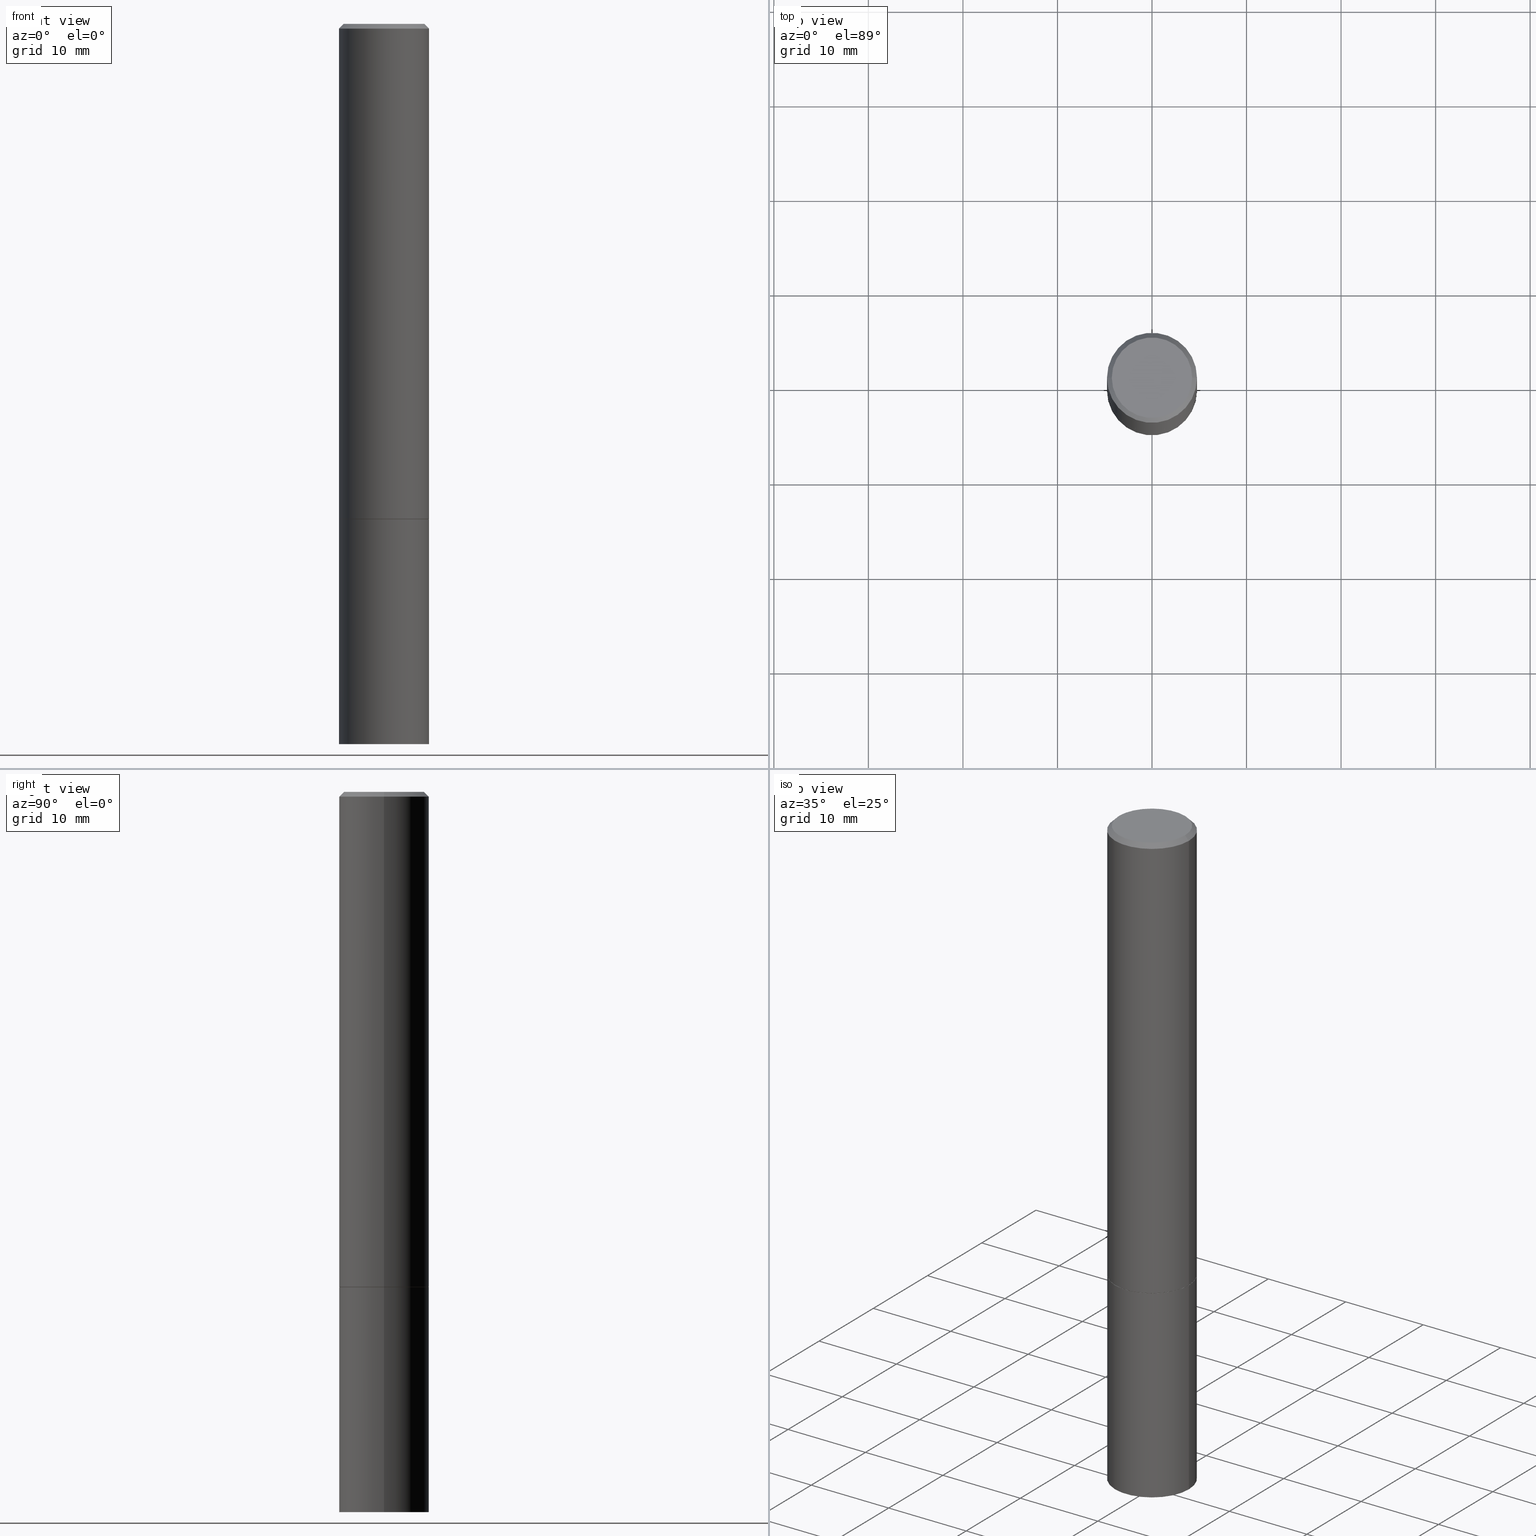
[diagram: canonical four-view strip — front | top / right | iso, engineering-drawing reading convention]
A machine part, canonical four-view strip (front | top / right | iso — engineering-drawing reading convention). The complete STEP part file that produces these views, byte-faithful:
ISO-10303-21;
HEADER;
FILE_DESCRIPTION (( 'STEP AP203' ),
    '1' );
FILE_NAME ('77139.STEP',
    '2024-02-29T14:53:44',
    ( '' ),
    ( '' ),
    'SwSTEP 2.0',
    'SolidWorks 2023',
    '' );
FILE_SCHEMA (( 'CONFIG_CONTROL_DESIGN' ));
ENDSEC;

DATA;
#1 = CARTESIAN_POINT ( 'NONE',  ( 5.043779412756843670E-29, -7.201180261363987000E-15, -2.062500000000000000 ) ) ;
#2 = CIRCLE ( 'NONE', #186, 0.1875000000000000278 ) ;
#3 = FACE_OUTER_BOUND ( 'NONE', #17, .T. ) ;
#4 = CARTESIAN_POINT ( 'NONE',  ( 5.041333943950659188E-29, -7.197688780025145571E-15, -2.061500000000000110 ) ) ;
#5 = APPROVAL ( #313, 'UNSPECIFIED' ) ;
#6 = DATE_AND_TIME ( #103, #20 ) ;
#7 = EDGE_LOOP ( 'NONE', ( #114, #272, #299, #92 ) ) ;
#8 = AXIS2_PLACEMENT_3D ( 'NONE', #145, #24, #151 ) ;
#9 = ORGANIZATION ( 'UNSPECIFIED', 'UNSPECIFIED', '' ) ;
#10 = SHAPE_DEFINITION_REPRESENTATION ( #173, #52 ) ;
#11 = EDGE_CURVE ( 'NONE', #350, #281, #195, .T. ) ;
#12 = DIRECTION ( 'NONE',  ( 1.000000000000000000, -6.982962677686265922E-15, 4.875936752492899929E-29 ) ) ;
#13 = DATE_AND_TIME ( #42, #95 ) ;
#14 = DIRECTION ( 'NONE',  ( -2.445468806185136597E-29, 3.491481338843145583E-15, 1.000000000000000000 ) ) ;
#15 = AXIS2_PLACEMENT_3D ( 'NONE', #1, #200, #171 ) ;
#16 = LINE ( 'NONE', #77, #25 ) ;
#17 = EDGE_LOOP ( 'NONE', ( #333, #327, #61, #82 ) ) ;
#18 = AXIS2_PLACEMENT_3D ( 'NONE', #160, #349, #325 ) ;
#19 = ORIENTED_EDGE ( 'NONE', *, *, #70, .F. ) ;
#20 = LOCAL_TIME ( 9, 53, 44.00000000000000000, #348 ) ;
#21 = CC_DESIGN_PERSON_AND_ORGANIZATION_ASSIGNMENT ( #237, #287, ( #326 ) ) ;
#22 = VERTEX_POINT ( 'NONE', #358 ) ;
#23 = EDGE_LOOP ( 'NONE', ( #277, #90, #19, #75 ) ) ;
#24 = DIRECTION ( 'NONE',  ( 2.438088387897960049E-29, -3.491481338843145188E-15, -1.000000000000000000 ) ) ;
#25 = VECTOR ( 'NONE', #347, 39.37007874015748143 ) ;
#26 = CARTESIAN_POINT ( 'NONE',  ( -1.043851414335219820E-46, 1.490343170380447200E-32, 4.268512490100411279E-18 ) ) ;
#27 = DIRECTION ( 'NONE',  ( 1.000000000000000000, -6.982962677686265922E-15, 4.875936752492899929E-29 ) ) ;
#28 = MANIFOLD_SOLID_BREP ( 'Body-Move/Copy2[1]', #301 ) ;
#29 = CARTESIAN_POINT ( 'NONE',  ( -0.1864999999999999991, -5.870719604823178546E-15, -2.062500000000000000 ) ) ;
#30 = APPLICATION_CONTEXT ( 'configuration controlled 3d designs of mechanical parts and assemblies' ) ;
#31 = VERTEX_POINT ( 'NONE', #328 ) ;
#32 = DIRECTION ( 'NONE',  ( -2.445468806185136597E-29, 3.491481338843145583E-15, 1.000000000000000000 ) ) ;
#33 = EDGE_CURVE ( 'NONE', #80, #331, #56, .T. ) ;
#34 = DATE_TIME_ROLE ( 'classification_date' ) ;
#35 = DATE_AND_TIME ( #184, #197 ) ;
#36 = CARTESIAN_POINT ( 'NONE',  ( 5.041333943950659188E-29, -7.197688780025145571E-15, -2.061500000000000110 ) ) ;
#37 = CONICAL_SURFACE ( 'NONE', #78, 0.1864999999999999991, 0.7853981633975507526 ) ;
#38 = VECTOR ( 'NONE', #106, 39.37007874015748143 ) ;
#39 = DATE_AND_TIME ( #189, #64 ) ;
#40 = FACE_OUTER_BOUND ( 'NONE', #221, .T. ) ;
#41 = ORIENTED_EDGE ( 'NONE', *, *, #33, .T. ) ;
#42 = CALENDAR_DATE ( 2024, 29, 2 ) ;
#43 = DIRECTION ( 'NONE',  ( -1.000000000000000000, 6.982962677686265922E-15, -4.876176775795935793E-29 ) ) ;
#44 = EDGE_LOOP ( 'NONE', ( #248, #137 ) ) ;
#45 = ADVANCED_FACE ( 'NONE', ( #251 ), #360, .T. ) ;
#46 = CIRCLE ( 'NONE', #113, 0.1875000000000000278 ) ;
#47 = CC_DESIGN_SECURITY_CLASSIFICATION ( #178, ( #326 ) ) ;
#48 = EDGE_CURVE ( 'NONE', #331, #80, #46, .T. ) ;
#49 = ORIENTED_EDGE ( 'NONE', *, *, #48, .T. ) ;
#50 = CC_DESIGN_PERSON_AND_ORGANIZATION_ASSIGNMENT ( #65, #157, ( #326 ) ) ;
#51 = DIRECTION ( 'NONE',  ( -2.445468806185136597E-29, 3.491481338843145583E-15, 1.000000000000000000 ) ) ;
#52 = ADVANCED_BREP_SHAPE_REPRESENTATION ( '77139', ( #28, #275, #162 ), #332 ) ;
#53 = DIRECTION ( 'NONE',  ( 1.000000000000000000, -6.982962677686265922E-15, 4.876176775795935793E-29 ) ) ;
#54 = VERTEX_POINT ( 'NONE', #311 ) ;
#55 = CARTESIAN_POINT ( 'NONE',  ( -0.1875000000000000278, -7.505544509396524617E-15, -3.000000000000000444 ) ) ;
#56 = CIRCLE ( 'NONE', #72, 0.1875000000000000278 ) ;
#57 = PRODUCT_DEFINITION ( 'UNKNOWN', '', #326, #100 ) ;
#58 = DIRECTION ( 'NONE',  ( 1.000000000000000000, -6.982962677686265133E-15, 0.000000000000000000 ) ) ;
#59 = ADVANCED_FACE ( 'NONE', ( #204 ), #37, .T. ) ;
#60 = CARTESIAN_POINT ( 'NONE',  ( 0.1875000000000000278, -1.309305502066175008E-15, 9.142831454617381013E-30 ) ) ;
#61 = ORIENTED_EDGE ( 'NONE', *, *, #302, .T. ) ;
#62 = DIRECTION ( 'NONE',  ( 1.000000000000000000, -6.982962677686268288E-15, 0.000000000000000000 ) ) ;
#63 = AXIS2_PLACEMENT_3D ( 'NONE', #309, #202, #174 ) ;
#64 = LOCAL_TIME ( 9, 53, 44.00000000000000000, #318 ) ;
#65 = PERSON_AND_ORGANIZATION ( #268, #9 ) ;
#66 = DIRECTION ( 'NONE',  ( -2.445468806185136597E-29, 3.491481338843145583E-15, 1.000000000000000000 ) ) ;
#67 = VERTEX_POINT ( 'NONE', #208 ) ;
#68 = PERSON_AND_ORGANIZATION_ROLE ( 'design_owner' ) ;
#69 = CARTESIAN_POINT ( 'NONE',  ( -0.1874999999999997502, 1.239475875289309935E-15, -0.02000000000000004205 ) ) ;
#70 = EDGE_CURVE ( 'NONE', #22, #350, #144, .T. ) ;
#71 = DIRECTION ( 'NONE',  ( -2.445468806185136597E-29, 3.491481338843145583E-15, 1.000000000000000000 ) ) ;
#72 = AXIS2_PLACEMENT_3D ( 'NONE', #143, #51, #166 ) ;
#73 = PERSON_AND_ORGANIZATION ( #268, #9 ) ;
#74 = DIRECTION ( 'NONE',  ( 2.438088387897960049E-29, -3.491481338843145188E-15, -1.000000000000000000 ) ) ;
#75 = ORIENTED_EDGE ( 'NONE', *, *, #169, .F. ) ;
#76 = DIRECTION ( 'NONE',  ( -1.000000000000000000, 6.982962677686265133E-15, 0.000000000000000000 ) ) ;
#77 = CARTESIAN_POINT ( 'NONE',  ( -0.1875000000000000278, 1.332267629550188046E-15, -9.223003294227947991E-30 ) ) ;
#78 = AXIS2_PLACEMENT_3D ( 'NONE', #226, #335, #62 ) ;
#79 = ORIENTED_EDGE ( 'NONE', *, *, #319, .T. ) ;
#80 = VERTEX_POINT ( 'NONE', #284 ) ;
#81 = AXIS2_PLACEMENT_3D ( 'NONE', #146, #122, #180 ) ;
#82 = ORIENTED_EDGE ( 'NONE', *, *, #183, .F. ) ;
#83 = ADVANCED_FACE ( 'NONE', ( #231 ), #366, .T. ) ;
#84 = ORIENTED_EDGE ( 'NONE', *, *, #131, .F. ) ;
#85 = APPROVAL ( #285, 'UNSPECIFIED' ) ;
#86 = CARTESIAN_POINT ( 'NONE',  ( 0.1874999999999997502, -1.356173001359023494E-15, -0.02000000000000004205 ) ) ;
#87 = DIRECTION ( 'NONE',  ( -2.445468806185136597E-29, 3.491481338843145583E-15, 1.000000000000000000 ) ) ;
#88 = AXIS2_PLACEMENT_3D ( 'NONE', #278, #308, #58 ) ;
#89 = DIRECTION ( 'NONE',  ( 0.7071067811865465735, -7.319954787623252890E-15, -0.7071067811865484609 ) ) ;
#90 = ORIENTED_EDGE ( 'NONE', *, *, #359, .T. ) ;
#91 = DIRECTION ( 'NONE',  ( 2.438088387897960049E-29, -3.491481338843145188E-15, -1.000000000000000000 ) ) ;
#92 = ORIENTED_EDGE ( 'NONE', *, *, #259, .F. ) ;
#93 = APPROVAL_ROLE ( '' ) ;
#94 = CARTESIAN_POINT ( 'NONE',  ( 0.000000000000000000, 0.000000000000000000, 0.000000000000000000 ) ) ;
#95 = LOCAL_TIME ( 9, 53, 44.00000000000000000, #206 ) ;
#96 = DIRECTION ( 'NONE',  ( 1.000000000000000000, -6.982962677686266711E-15, 0.000000000000000000 ) ) ;
#97 = CALENDAR_DATE ( 2024, 29, 2 ) ;
#98 = PERSON_AND_ORGANIZATION ( #268, #9 ) ;
#99 = DIRECTION ( 'NONE',  ( 1.000000000000000000, -6.982962677686268288E-15, 0.000000000000000000 ) ) ;
#100 = DESIGN_CONTEXT ( 'detailed design', #228, 'design' ) ;
#101 = EDGE_LOOP ( 'NONE', ( #84, #217, #199, #111 ) ) ;
#102 = CIRCLE ( 'NONE', #342, 0.1674999999999997602 ) ;
#103 = CALENDAR_DATE ( 2024, 29, 2 ) ;
#104 = DIRECTION ( 'NONE',  ( 1.000000000000000000, -6.982962677686268288E-15, 0.000000000000000000 ) ) ;
#105 = ADVANCED_FACE ( 'NONE', ( #261 ), #280, .T. ) ;
#106 = DIRECTION ( 'NONE',  ( -0.7071067811866199593, 7.493145998870616062E-15, 0.7071067811864750752 ) ) ;
#107 = EDGE_CURVE ( 'NONE', #159, #54, #353, .T. ) ;
#108 = AXIS2_PLACEMENT_3D ( 'NONE', #26, #337, #27 ) ;
#109 = VERTEX_POINT ( 'NONE', #29 ) ;
#110 = EDGE_LOOP ( 'NONE', ( #41, #49 ) ) ;
#111 = ORIENTED_EDGE ( 'NONE', *, *, #183, .T. ) ;
#112 = ADVANCED_FACE ( 'NONE', ( #3 ), #176, .T. ) ;
#113 = AXIS2_PLACEMENT_3D ( 'NONE', #167, #276, #253 ) ;
#114 = ORIENTED_EDGE ( 'NONE', *, *, #359, .F. ) ;
#115 = CC_DESIGN_PERSON_AND_ORGANIZATION_ASSIGNMENT ( #235, #344, ( #57 ) ) ;
#116 = DIRECTION ( 'NONE',  ( 0.7071067811866199593, -2.468850131083015945E-15, 0.7071067811864750752 ) ) ;
#117 = LINE ( 'NONE', #60, #352 ) ;
#118 = EDGE_CURVE ( 'NONE', #139, #281, #249, .T. ) ;
#119 = CARTESIAN_POINT ( 'NONE',  ( 0.000000000000000000, 0.000000000000000000, 0.000000000000000000 ) ) ;
#120 = CARTESIAN_POINT ( 'NONE',  ( -1.043851414335219820E-46, 1.490343170380447200E-32, 4.268512490100411279E-18 ) ) ;
#121 = AXIS2_PLACEMENT_3D ( 'NONE', #288, #134, #345 ) ;
#122 = DIRECTION ( 'NONE',  ( -2.445468806185136597E-29, 3.491481338843145583E-15, 1.000000000000000000 ) ) ;
#123 = ORIENTED_EDGE ( 'NONE', *, *, #11, .T. ) ;
#124 = LINE ( 'NONE', #149, #170 ) ;
#125 = EDGE_CURVE ( 'NONE', #31, #67, #165, .T. ) ;
#126 = DIRECTION ( 'NONE',  ( 0.000000000000000000, 0.000000000000000000, 1.000000000000000000 ) ) ;
#127 = CONICAL_SURFACE ( 'NONE', #121, 0.1874999999999997502, 0.7853981633974469467 ) ;
#128 = APPROVAL_STATUS ( 'not_yet_approved' ) ;
#129 = CARTESIAN_POINT ( 'NONE',  ( 0.1874999999999998890, -1.309305502066174022E-15, 9.142831454617374006E-30 ) ) ;
#130 = DIRECTION ( 'NONE',  ( -2.445468806185136597E-29, 3.491481338843145583E-15, 1.000000000000000000 ) ) ;
#131 = EDGE_CURVE ( 'NONE', #67, #139, #124, .T. ) ;
#132 = ORIENTED_EDGE ( 'NONE', *, *, #33, .F. ) ;
#133 = COORDINATED_UNIVERSAL_TIME_OFFSET ( 5, 0, .BEHIND. ) ;
#134 = DIRECTION ( 'NONE',  ( 2.445468806185136597E-29, -3.491481338843145583E-15, -1.000000000000000000 ) ) ;
#135 = AXIS2_PLACEMENT_3D ( 'NONE', #279, #32, #306 ) ;
#136 =( CONVERSION_BASED_UNIT ( 'INCH', #252 ) LENGTH_UNIT ( ) NAMED_UNIT ( #329 ) );
#137 = ORIENTED_EDGE ( 'NONE', *, *, #192, .T. ) ;
#138 = VECTOR ( 'NONE', #218, 39.37007874015748143 ) ;
#139 = VERTEX_POINT ( 'NONE', #86 ) ;
#140 =( NAMED_UNIT ( * ) PLANE_ANGLE_UNIT ( ) SI_UNIT ( $, .RADIAN. ) );
#141 = ORIENTED_EDGE ( 'NONE', *, *, #147, .F. ) ;
#142 = ADVANCED_FACE ( 'NONE', ( #201 ), #338, .F. ) ;
#143 = CARTESIAN_POINT ( 'NONE',  ( 5.043779412756844791E-29, -7.201180261363988578E-15, -2.062500000000000000 ) ) ;
#144 = CIRCLE ( 'NONE', #260, 0.1875000000000000278 ) ;
#145 = CARTESIAN_POINT ( 'NONE',  ( 1.309305502066248372E-15, 0.1874999999999895361, -3.000000000000000888 ) ) ;
#146 = CARTESIAN_POINT ( 'NONE',  ( 7.336406418555409790E-29, -1.047444401652943635E-14, -3.000000000000000444 ) ) ;
#147 = EDGE_CURVE ( 'NONE', #54, #80, #117, .T. ) ;
#148 = LINE ( 'NONE', #227, #175 ) ;
#149 = CARTESIAN_POINT ( 'NONE',  ( 0.1874999999999997502, -1.356173001359023494E-15, -0.02000000000000004205 ) ) ;
#150 = AXIS2_PLACEMENT_3D ( 'NONE', #316, #154, #266 ) ;
#151 = DIRECTION ( 'NONE',  ( -1.000000000000000000, 6.982962677686265922E-15, -4.876176775795935793E-29 ) ) ;
#152 = ADVANCED_FACE ( 'NONE', ( #341 ), #256, .T. ) ;
#153 = PERSON_AND_ORGANIZATION ( #268, #9 ) ;
#154 = DIRECTION ( 'NONE',  ( -2.445468806185136597E-29, 3.491481338843145583E-15, 1.000000000000000000 ) ) ;
#155 = CONICAL_SURFACE ( 'NONE', #336, 0.1874999999999997502, 0.7853981633974469467 ) ;
#156 = EDGE_LOOP ( 'NONE', ( #362, #191 ) ) ;
#157 = PERSON_AND_ORGANIZATION_ROLE ( 'design_supplier' ) ;
#158 = CARTESIAN_POINT ( 'NONE',  ( -0.1875000000000000278, -2.301491573850814614E-15, -2.061500000000000110 ) ) ;
#159 = VERTEX_POINT ( 'NONE', #55 ) ;
#160 = CARTESIAN_POINT ( 'NONE',  ( 5.043779412756844791E-29, -7.201180261363988578E-15, -2.062500000000000000 ) ) ;
#161 = CLOSED_SHELL ( 'NONE', ( #177, #152, #245, #203, #112, #59, #270, #142 ) ) ;
#162 = AXIS2_PLACEMENT_3D ( 'NONE', #119, #126, #320 ) ;
#163 = CC_DESIGN_PERSON_AND_ORGANIZATION_ASSIGNMENT ( #73, #68, ( #364 ) ) ;
#164 = ORIENTED_EDGE ( 'NONE', *, *, #70, .T. ) ;
#165 = CIRCLE ( 'NONE', #108, 0.1674999999999997602 ) ;
#166 = DIRECTION ( 'NONE',  ( 1.000000000000000000, -6.982962677686266711E-15, 0.000000000000000000 ) ) ;
#167 = CARTESIAN_POINT ( 'NONE',  ( 5.043779412756844791E-29, -7.201180261363988578E-15, -2.062500000000000000 ) ) ;
#168 = ORIENTED_EDGE ( 'NONE', *, *, #317, .F. ) ;
#169 = EDGE_CURVE ( 'NONE', #274, #22, #148, .T. ) ;
#170 = VECTOR ( 'NONE', #89, 39.37007874015748143 ) ;
#171 = DIRECTION ( 'NONE',  ( 1.000000000000000000, -6.982962677686268288E-15, 0.000000000000000000 ) ) ;
#172 = DIRECTION ( 'NONE',  ( 1.000000000000000000, -6.982962677686265922E-15, 4.876176775795935793E-29 ) ) ;
#173 = PRODUCT_DEFINITION_SHAPE ( 'NONE', 'NONE',  #57 ) ;
#174 = DIRECTION ( 'NONE',  ( 1.000000000000000000, -6.982962677686265922E-15, 4.876176775795935793E-29 ) ) ;
#175 = VECTOR ( 'NONE', #116, 39.37007874015748143 ) ;
#176 = CYLINDRICAL_SURFACE ( 'NONE', #265, 0.1874999999999998890 ) ;
#177 = ADVANCED_FACE ( 'NONE', ( #258 ), #216, .T. ) ;
#178 = SECURITY_CLASSIFICATION ( '', '', #179 ) ;
#179 = SECURITY_CLASSIFICATION_LEVEL ( 'unclassified' ) ;
#180 = DIRECTION ( 'NONE',  ( 1.000000000000000000, -6.982962677686261189E-15, 0.000000000000000000 ) ) ;
#181 = DATE_AND_TIME ( #97, #230 ) ;
#182 = DIRECTION ( 'NONE',  ( -2.445468806185136877E-29, 3.491481338843145188E-15, 1.000000000000000000 ) ) ;
#183 = EDGE_CURVE ( 'NONE', #281, #139, #269, .T. ) ;
#184 = CALENDAR_DATE ( 2024, 29, 2 ) ;
#185 = CARTESIAN_POINT ( 'NONE',  ( -0.1874999999999997502, 1.239475875289309935E-15, -0.02000000000000004205 ) ) ;
#186 = AXIS2_PLACEMENT_3D ( 'NONE', #36, #130, #96 ) ;
#187 = APPROVAL_PERSON_ORGANIZATION ( #210, #5, #93 ) ;
#188 = APPROVAL ( #128, 'UNSPECIFIED' ) ;
#189 = CALENDAR_DATE ( 2024, 29, 2 ) ;
#190 = DIRECTION ( 'NONE',  ( 2.445468806185136597E-29, -3.491481338843145583E-15, -1.000000000000000000 ) ) ;
#191 = ORIENTED_EDGE ( 'NONE', *, *, #107, .F. ) ;
#192 = EDGE_CURVE ( 'NONE', #67, #31, #102, .T. ) ;
#193 = AXIS2_PLACEMENT_3D ( 'NONE', #267, #244, #104 ) ;
#194 = ORIENTED_EDGE ( 'NONE', *, *, #131, .T. ) ;
#195 = LINE ( 'NONE', #250, #363 ) ;
#196 = CC_DESIGN_PERSON_AND_ORGANIZATION_ASSIGNMENT ( #351, #213, ( #178 ) ) ;
#197 = LOCAL_TIME ( 9, 53, 44.00000000000000000, #243 ) ;
#198 = CARTESIAN_POINT ( 'NONE',  ( 0.000000000000000000, 0.000000000000000000, 0.000000000000000000 ) ) ;
#199 = ORIENTED_EDGE ( 'NONE', *, *, #232, .T. ) ;
#200 = DIRECTION ( 'NONE',  ( -2.445468806185136597E-29, 3.491481338843145583E-15, 1.000000000000000000 ) ) ;
#201 = FACE_OUTER_BOUND ( 'NONE', #44, .T. ) ;
#202 = DIRECTION ( 'NONE',  ( -2.445468806185136597E-29, 3.491481338843145583E-15, 1.000000000000000000 ) ) ;
#203 = ADVANCED_FACE ( 'NONE', ( #236 ), #127, .T. ) ;
#204 = FACE_OUTER_BOUND ( 'NONE', #7, .T. ) ;
#205 = ORIENTED_EDGE ( 'NONE', *, *, #355, .F. ) ;
#206 = COORDINATED_UNIVERSAL_TIME_OFFSET ( 5, 0, .BEHIND. ) ;
#207 = CC_DESIGN_DATE_AND_TIME_ASSIGNMENT ( #13, #315, ( #57 ) ) ;
#208 = CARTESIAN_POINT ( 'NONE',  ( 0.1674999999999997602, -1.252653207992876711E-15, 4.268512490108880748E-18 ) ) ;
#209 = UNCERTAINTY_MEASURE_WITH_UNIT (LENGTH_MEASURE( 1.000000000000000082E-05 ), #136, 'distance_accuracy_value', 'NONE');
#210 = PERSON_AND_ORGANIZATION ( #268, #9 ) ;
#211 = LINE ( 'NONE', #185, #138 ) ;
#212 = EDGE_LOOP ( 'NONE', ( #164, #123, #239, #292 ) ) ;
#213 = PERSON_AND_ORGANIZATION_ROLE ( 'classification_officer' ) ;
#214 = APPROVAL_DATE_TIME ( #181, #85 ) ;
#215 = CARTESIAN_POINT ( 'NONE',  ( -0.1875000000000000278, -7.505544509396524617E-15, -2.062500000000000000 ) ) ;
#216 = CONICAL_SURFACE ( 'NONE', #15, 0.1864999999999999991, 0.7853981633975507526 ) ;
#217 = ORIENTED_EDGE ( 'NONE', *, *, #125, .F. ) ;
#218 = DIRECTION ( 'NONE',  ( -0.7071067811865465735, 2.468850131082246805E-15, -0.7071067811865484609 ) ) ;
#219 = AXIS2_PLACEMENT_3D ( 'NONE', #94, #87, #314 ) ;
#220 = EDGE_LOOP ( 'NONE', ( #242, #194, #295, #225 ) ) ;
#221 = EDGE_LOOP ( 'NONE', ( #205, #168 ) ) ;
#222 =( LENGTH_UNIT ( ) NAMED_UNIT ( * ) SI_UNIT ( $, .METRE. ) );
#223 = ORIENTED_EDGE ( 'NONE', *, *, #147, .T. ) ;
#224 = CIRCLE ( 'NONE', #193, 0.1864999999999999991 ) ;
#225 = ORIENTED_EDGE ( 'NONE', *, *, #232, .F. ) ;
#226 = CARTESIAN_POINT ( 'NONE',  ( 5.043779412756843670E-29, -7.201180261363987000E-15, -2.062500000000000000 ) ) ;
#227 = CARTESIAN_POINT ( 'NONE',  ( 0.1864999999999999991, -8.503502800752475994E-15, -2.062500000000000000 ) ) ;
#228 = APPLICATION_CONTEXT ( 'configuration controlled 3d designs of mechanical parts and assemblies' ) ;
#229 = VECTOR ( 'NONE', #182, 39.37007874015748143 ) ;
#230 = LOCAL_TIME ( 9, 53, 44.00000000000000000, #133 ) ;
#231 = FACE_OUTER_BOUND ( 'NONE', #156, .T. ) ;
#232 = EDGE_CURVE ( 'NONE', #31, #281, #211, .T. ) ;
#233 = DIRECTION ( 'NONE',  ( -2.445468806185136597E-29, 3.491481338843145583E-15, 1.000000000000000000 ) ) ;
#234 = CARTESIAN_POINT ( 'NONE',  ( 1.169646248512447820E-15, 0.1674999999999997602, -5.826888680111757675E-16 ) ) ;
#235 = PERSON_AND_ORGANIZATION ( #268, #9 ) ;
#236 = FACE_OUTER_BOUND ( 'NONE', #101, .T. ) ;
#237 = PERSON_AND_ORGANIZATION ( #268, #9 ) ;
#238 = CARTESIAN_POINT ( 'NONE',  ( 5.043779412756843670E-29, -7.201180261363987000E-15, -2.062500000000000000 ) ) ;
#239 = ORIENTED_EDGE ( 'NONE', *, *, #118, .F. ) ;
#240 = MECHANICAL_CONTEXT ( 'NONE', #30, 'mechanical' ) ;
#241 = PLANE ( 'NONE',  #18 ) ;
#242 = ORIENTED_EDGE ( 'NONE', *, *, #192, .F. ) ;
#243 = COORDINATED_UNIVERSAL_TIME_OFFSET ( 5, 0, .BEHIND. ) ;
#244 = DIRECTION ( 'NONE',  ( -2.445468806185136597E-29, 3.491481338843145583E-15, 1.000000000000000000 ) ) ;
#245 = ADVANCED_FACE ( 'NONE', ( #324 ), #155, .T. ) ;
#246 = PRODUCT_RELATED_PRODUCT_CATEGORY ( 'detail', '', ( #364 ) ) ;
#247 = CARTESIAN_POINT ( 'NONE',  ( -0.1864999999999999991, -5.876018059171400948E-15, -2.062500000000000000 ) ) ;
#248 = ORIENTED_EDGE ( 'NONE', *, *, #125, .T. ) ;
#249 = CIRCLE ( 'NONE', #135, 0.1874999999999997502 ) ;
#250 = CARTESIAN_POINT ( 'NONE',  ( -0.1874999999999998890, 1.332267629550187060E-15, -9.223003294227942385E-30 ) ) ;
#251 = FACE_OUTER_BOUND ( 'NONE', #356, .T. ) ;
#252 = LENGTH_MEASURE_WITH_UNIT ( LENGTH_MEASURE( 0.02539999999999999897 ), #222 );
#253 = DIRECTION ( 'NONE',  ( 1.000000000000000000, -6.982962677686266711E-15, 0.000000000000000000 ) ) ;
#254 = AXIS2_PLACEMENT_3D ( 'NONE', #234, #91, #262 ) ;
#255 = AXIS2_PLACEMENT_3D ( 'NONE', #294, #74, #43 ) ;
#256 = CYLINDRICAL_SURFACE ( 'NONE', #219, 0.1874999999999998890 ) ;
#257 = CARTESIAN_POINT ( 'NONE',  ( 0.000000000000000000, 0.000000000000000000, 0.000000000000000000 ) ) ;
#258 = FACE_OUTER_BOUND ( 'NONE', #23, .T. ) ;
#259 = EDGE_CURVE ( 'NONE', #350, #22, #2, .T. ) ;
#260 = AXIS2_PLACEMENT_3D ( 'NONE', #4, #66, #365 ) ;
#261 = FACE_OUTER_BOUND ( 'NONE', #289, .T. ) ;
#262 = DIRECTION ( 'NONE',  ( -1.000000000000000000, 6.982962677686265922E-15, -4.876176775795935793E-29 ) ) ;
#263 = APPROVAL_ROLE ( '' ) ;
#264 = APPROVAL_DATE_TIME ( #35, #188 ) ;
#265 = AXIS2_PLACEMENT_3D ( 'NONE', #257, #233, #172 ) ;
#266 = DIRECTION ( 'NONE',  ( 1.000000000000000000, -6.982962677686261189E-15, 0.000000000000000000 ) ) ;
#267 = CARTESIAN_POINT ( 'NONE',  ( 5.043779412756843670E-29, -7.201180261363987000E-15, -2.062500000000000000 ) ) ;
#268 = PERSON ( 'UNSPECIFIED', 'UNSPECIFIED', 'UNSPECIFIED', ('UNSPECIFIED'), ('UNSPECIFIED'), ('UNSPECIFIED') ) ;
#269 = CIRCLE ( 'NONE', #88, 0.1874999999999997502 ) ;
#270 = ADVANCED_FACE ( 'NONE', ( #40 ), #241, .F. ) ;
#271 = EDGE_CURVE ( 'NONE', #54, #159, #321, .T. ) ;
#272 = ORIENTED_EDGE ( 'NONE', *, *, #317, .T. ) ;
#273 = ORIENTED_EDGE ( 'NONE', *, *, #319, .F. ) ;
#274 = VERTEX_POINT ( 'NONE', #296 ) ;
#275 = MANIFOLD_SOLID_BREP ( 'Body-Move/Copy2[2]', #161 ) ;
#276 = DIRECTION ( 'NONE',  ( -2.445468806185136597E-29, 3.491481338843145583E-15, 1.000000000000000000 ) ) ;
#277 = ORIENTED_EDGE ( 'NONE', *, *, #355, .T. ) ;
#278 = CARTESIAN_POINT ( 'NONE',  ( 4.890937612370283668E-31, -6.982962677686305168E-17, -0.02000000000000004205 ) ) ;
#279 = CARTESIAN_POINT ( 'NONE',  ( 4.890937612370283668E-31, -6.982962677686305168E-17, -0.02000000000000004205 ) ) ;
#280 = CYLINDRICAL_SURFACE ( 'NONE', #63, 0.1875000000000000278 ) ;
#281 = VERTEX_POINT ( 'NONE', #69 ) ;
#282 = AXIS2_PLACEMENT_3D ( 'NONE', #198, #303, #53 ) ;
#283 = CC_DESIGN_APPROVAL ( #5, ( #57 ) ) ;
#284 = CARTESIAN_POINT ( 'NONE',  ( 0.1875000000000000278, -8.510485763430163586E-15, -2.062500000000000000 ) ) ;
#285 = APPROVAL_STATUS ( 'not_yet_approved' ) ;
#286 = PLANE ( 'NONE',  #255 ) ;
#287 = PERSON_AND_ORGANIZATION_ROLE ( 'creator' ) ;
#288 = CARTESIAN_POINT ( 'NONE',  ( 4.890937612370283668E-31, -6.982962677686305168E-17, -0.02000000000000004205 ) ) ;
#289 = EDGE_LOOP ( 'NONE', ( #273, #323, #223, #310 ) ) ;
#290 = LINE ( 'NONE', #129, #229 ) ;
#291 = APPROVAL_PERSON_ORGANIZATION ( #153, #188, #293 ) ;
#292 = ORIENTED_EDGE ( 'NONE', *, *, #302, .F. ) ;
#293 = APPROVAL_ROLE ( '' ) ;
#294 = CARTESIAN_POINT ( 'NONE',  ( 1.309305502066225495E-15, 0.1874999999999928113, -2.062500000000000888 ) ) ;
#295 = ORIENTED_EDGE ( 'NONE', *, *, #118, .T. ) ;
#296 = CARTESIAN_POINT ( 'NONE',  ( 0.1864999999999999991, -8.503502800752475994E-15, -2.062500000000000000 ) ) ;
#297 = APPROVAL_PERSON_ORGANIZATION ( #98, #85, #263 ) ;
#298 =( NAMED_UNIT ( * ) SI_UNIT ( $, .STERADIAN. ) SOLID_ANGLE_UNIT ( ) );
#299 = ORIENTED_EDGE ( 'NONE', *, *, #169, .T. ) ;
#300 = DIRECTION ( 'NONE',  ( -2.445468806185136877E-29, 3.491481338843145188E-15, 1.000000000000000000 ) ) ;
#301 = CLOSED_SHELL ( 'NONE', ( #45, #83, #339, #105 ) ) ;
#302 = EDGE_CURVE ( 'NONE', #22, #139, #290, .T. ) ;
#303 = DIRECTION ( 'NONE',  ( -2.445468806185136597E-29, 3.491481338843145583E-15, 1.000000000000000000 ) ) ;
#304 = CC_DESIGN_DATE_AND_TIME_ASSIGNMENT ( #39, #34, ( #178 ) ) ;
#305 = ORIENTED_EDGE ( 'NONE', *, *, #271, .T. ) ;
#306 = DIRECTION ( 'NONE',  ( 1.000000000000000000, -6.982962677686265133E-15, 0.000000000000000000 ) ) ;
#307 = CIRCLE ( 'NONE', #312, 0.1864999999999999991 ) ;
#308 = DIRECTION ( 'NONE',  ( -2.445468806185136597E-29, 3.491481338843145583E-15, 1.000000000000000000 ) ) ;
#309 = CARTESIAN_POINT ( 'NONE',  ( 0.000000000000000000, 0.000000000000000000, 0.000000000000000000 ) ) ;
#310 = ORIENTED_EDGE ( 'NONE', *, *, #48, .F. ) ;
#311 = CARTESIAN_POINT ( 'NONE',  ( 0.1875000000000000278, -1.178374951859561136E-14, -3.000000000000000444 ) ) ;
#312 = AXIS2_PLACEMENT_3D ( 'NONE', #238, #14, #99 ) ;
#313 = APPROVAL_STATUS ( 'not_yet_approved' ) ;
#314 = DIRECTION ( 'NONE',  ( 1.000000000000000000, -6.982962677686265922E-15, 4.876176775795935793E-29 ) ) ;
#315 = DATE_TIME_ROLE ( 'creation_date' ) ;
#316 = CARTESIAN_POINT ( 'NONE',  ( 7.336406418555409790E-29, -1.047444401652943635E-14, -3.000000000000000444 ) ) ;
#317 = EDGE_CURVE ( 'NONE', #109, #274, #307, .T. ) ;
#318 = COORDINATED_UNIVERSAL_TIME_OFFSET ( 5, 0, .BEHIND. ) ;
#319 = EDGE_CURVE ( 'NONE', #159, #331, #16, .T. ) ;
#320 = DIRECTION ( 'NONE',  ( 1.000000000000000000, 0.000000000000000000, 0.000000000000000000 ) ) ;
#321 = CIRCLE ( 'NONE', #150, 0.1875000000000000278 ) ;
#322 = FACE_OUTER_BOUND ( 'NONE', #110, .T. ) ;
#323 = ORIENTED_EDGE ( 'NONE', *, *, #107, .T. ) ;
#324 = FACE_OUTER_BOUND ( 'NONE', #220, .T. ) ;
#325 = DIRECTION ( 'NONE',  ( 1.000000000000000000, -6.982962677686265922E-15, 4.876176775795935793E-29 ) ) ;
#326 = PRODUCT_DEFINITION_FORMATION_WITH_SPECIFIED_SOURCE ( 'ANY', '', #364, .NOT_KNOWN. ) ;
#327 = ORIENTED_EDGE ( 'NONE', *, *, #259, .T. ) ;
#328 = CARTESIAN_POINT ( 'NONE',  ( -0.1674999999999997602, 1.204561061900878878E-15, 4.268512490092109750E-18 ) ) ;
#329 = DIMENSIONAL_EXPONENTS ( 1.000000000000000000, 0.000000000000000000, 0.000000000000000000, 0.000000000000000000, 0.000000000000000000, 0.000000000000000000, 0.000000000000000000 ) ;
#330 = LINE ( 'NONE', #247, #38 ) ;
#331 = VERTEX_POINT ( 'NONE', #215 ) ;
#332 =( GEOMETRIC_REPRESENTATION_CONTEXT ( 3 ) GLOBAL_UNCERTAINTY_ASSIGNED_CONTEXT ( ( #209 ) ) GLOBAL_UNIT_ASSIGNED_CONTEXT ( ( #136, #140, #298 ) ) REPRESENTATION_CONTEXT ( 'NONE', 'WORKASPACE' ) );
#333 = ORIENTED_EDGE ( 'NONE', *, *, #11, .F. ) ;
#334 = DIRECTION ( 'NONE',  ( -2.445468806185136877E-29, 3.491481338843145188E-15, 1.000000000000000000 ) ) ;
#335 = DIRECTION ( 'NONE',  ( -2.445468806185136597E-29, 3.491481338843145583E-15, 1.000000000000000000 ) ) ;
#336 = AXIS2_PLACEMENT_3D ( 'NONE', #354, #190, #76 ) ;
#337 = DIRECTION ( 'NONE',  ( -2.445468806185136597E-29, 3.491481338843145583E-15, 1.000000000000000000 ) ) ;
#338 = PLANE ( 'NONE',  #254 ) ;
#339 = ADVANCED_FACE ( 'NONE', ( #322 ), #286, .F. ) ;
#340 = APPROVAL_DATE_TIME ( #6, #5 ) ;
#341 = FACE_OUTER_BOUND ( 'NONE', #212, .T. ) ;
#342 = AXIS2_PLACEMENT_3D ( 'NONE', #120, #71, #12 ) ;
#343 = CC_DESIGN_APPROVAL ( #188, ( #178 ) ) ;
#344 = PERSON_AND_ORGANIZATION_ROLE ( 'creator' ) ;
#345 = DIRECTION ( 'NONE',  ( -1.000000000000000000, 6.982962677686265133E-15, 0.000000000000000000 ) ) ;
#346 = APPLICATION_PROTOCOL_DEFINITION ( 'international standard', 'config_control_design', 1994, #228 ) ;
#347 = DIRECTION ( 'NONE',  ( -2.445468806185136877E-29, 3.491481338843145188E-15, 1.000000000000000000 ) ) ;
#348 = COORDINATED_UNIVERSAL_TIME_OFFSET ( 5, 0, .BEHIND. ) ;
#349 = DIRECTION ( 'NONE',  ( -2.438088387897960049E-29, 3.491481338843145188E-15, 1.000000000000000000 ) ) ;
#350 = VERTEX_POINT ( 'NONE', #158 ) ;
#351 = PERSON_AND_ORGANIZATION ( #268, #9 ) ;
#352 = VECTOR ( 'NONE', #334, 39.37007874015748143 ) ;
#353 = CIRCLE ( 'NONE', #81, 0.1875000000000000278 ) ;
#354 = CARTESIAN_POINT ( 'NONE',  ( 4.890937612370283668E-31, -6.982962677686305168E-17, -0.02000000000000004205 ) ) ;
#355 = EDGE_CURVE ( 'NONE', #274, #109, #224, .T. ) ;
#356 = EDGE_LOOP ( 'NONE', ( #305, #79, #132, #141 ) ) ;
#357 = CC_DESIGN_APPROVAL ( #85, ( #326 ) ) ;
#358 = CARTESIAN_POINT ( 'NONE',  ( 0.1875000000000000278, -8.506994282091320579E-15, -2.061500000000000110 ) ) ;
#359 = EDGE_CURVE ( 'NONE', #109, #350, #330, .T. ) ;
#360 = CYLINDRICAL_SURFACE ( 'NONE', #282, 0.1875000000000000278 ) ;
#361 = APPLICATION_PROTOCOL_DEFINITION ( 'international standard', 'config_control_design', 1994, #30 ) ;
#362 = ORIENTED_EDGE ( 'NONE', *, *, #271, .F. ) ;
#363 = VECTOR ( 'NONE', #300, 39.37007874015748143 ) ;
#364 = PRODUCT ( '77139', '77139', '', ( #240 ) ) ;
#365 = DIRECTION ( 'NONE',  ( 1.000000000000000000, -6.982962677686266711E-15, 0.000000000000000000 ) ) ;
#366 = PLANE ( 'NONE',  #8 ) ;
ENDSEC;
END-ISO-10303-21;
